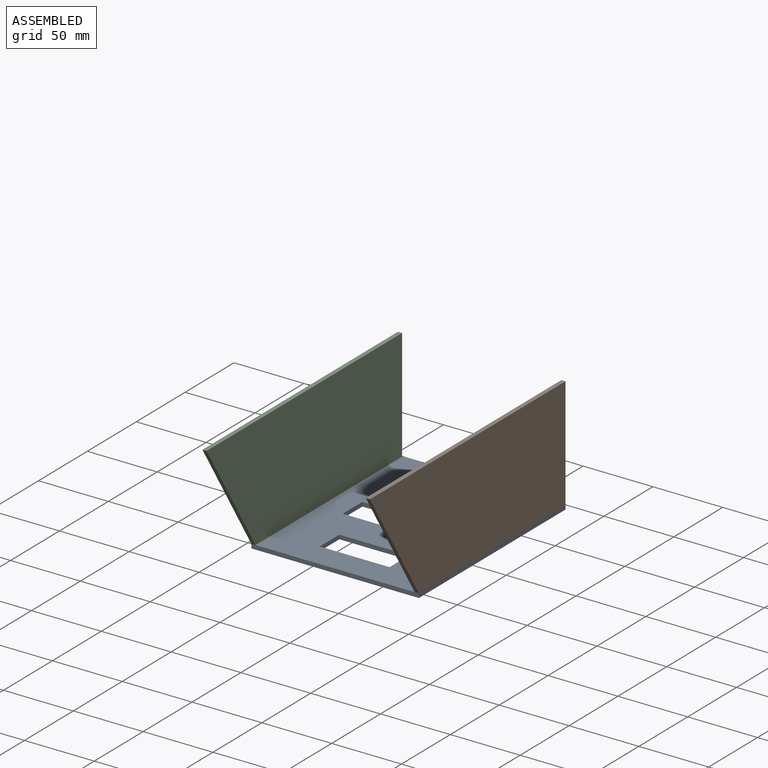
[diagram: assembled view]
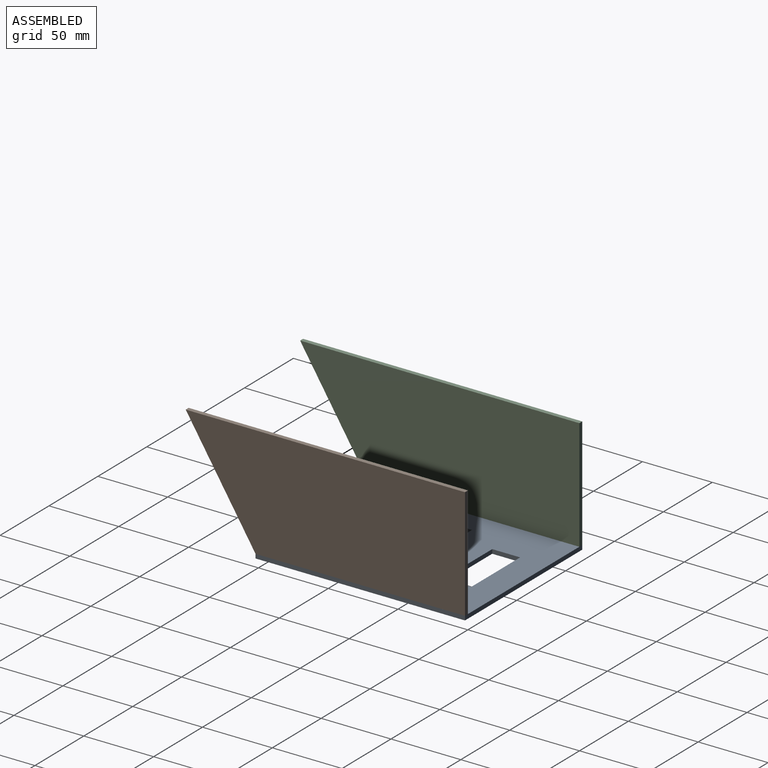
[diagram: assembled view, second angle]
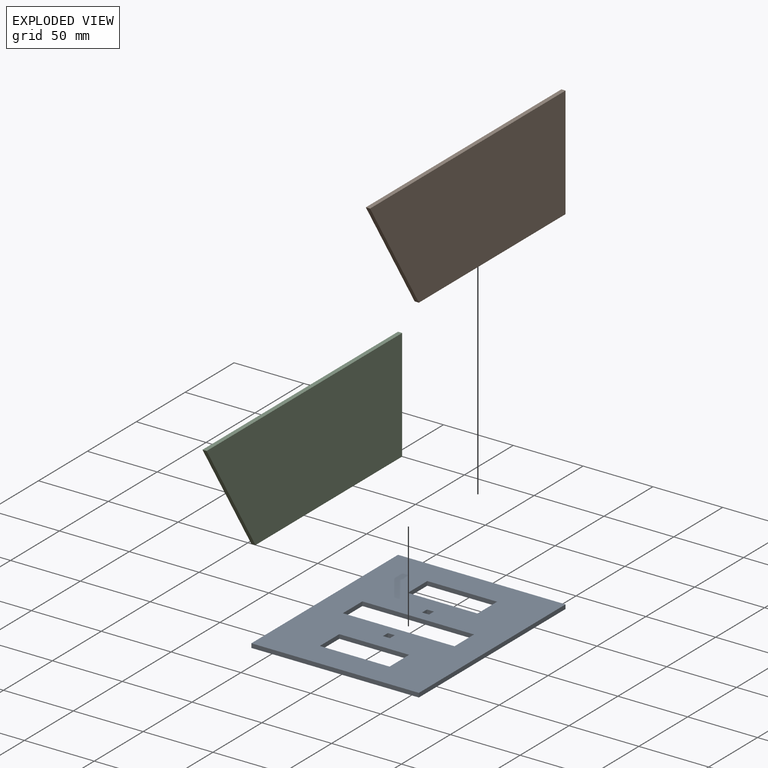
[diagram: exploded view]
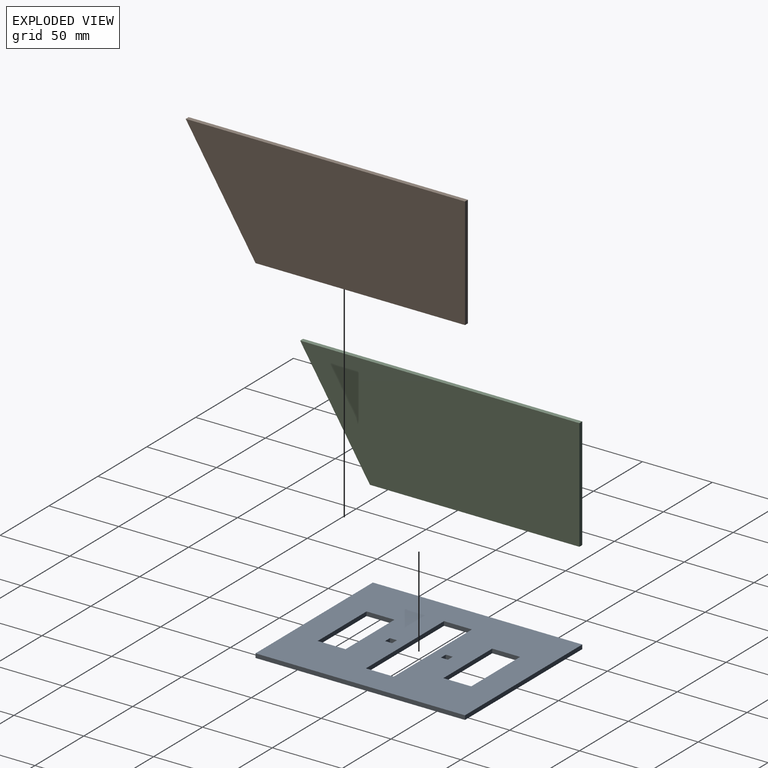
[diagram: exploded view, second angle]
ASSEMBLY  parts=3 mates=2
PART A: 26 faces, bbox 120x150x3 mm
  f0: plane 5x3mm, normal (0,1,0), area 15mm2, adj f1,f23,f24,f25
  f1: plane 5x3mm, normal (1,0,0), area 15mm2, adj f0,f2,f24,f25
  f2: plane 5x3mm, normal (0,-1,0), area 15mm2, adj f1,f23,f24,f25
  f3: plane 5x3mm, normal (1,0,0), area 15mm2, adj f4,f18,f24,f25
  f4: plane 5x3mm, normal (0,-1,0), area 15mm2, adj f3,f5,f24,f25
  f5: plane 5x3mm, normal (-1,0,0), area 15mm2, adj f4,f18,f24,f25
  f6: plane 50x3mm, normal (0,-1,0), area 150mm2, adj f7,f19,f24,f25
  f7: plane 20x3mm, normal (-1,0,0), area 60mm2, adj f6,f8,f24,f25
  f8: plane 50x3mm, normal (0,1,0), area 150mm2, adj f7,f19,f24,f25
  f9: plane 20x3mm, normal (-1,0,0), area 60mm2, adj f10,f20,f24,f25
  f10: plane 50x3mm, normal (0,1,0), area 150mm2, adj f9,f11,f24,f25
  f11: plane 20x3mm, normal (1,0,0), area 60mm2, adj f10,f20,f24,f25
  f12: plane 20x3mm, normal (-1,0,0), area 60mm2, adj f13,f21,f24,f25
  f13: plane 80x3mm, normal (0,1,0), area 240mm2, adj f12,f14,f24,f25
  f14: plane 20x3mm, normal (1,0,0), area 60mm2, adj f13,f21,f24,f25
  f15: plane 150x3mm, normal (-1,0,0), area 450mm2, adj f16,f22,f24,f25
  f16: plane 120x3mm, normal (0,-1,0), area 360mm2, adj f15,f17,f24,f25
  f17: plane 150x3mm, normal (1,0,0), area 450mm2, adj f16,f22,f24,f25
  f18: plane 5x3mm, normal (0,1,0), area 15mm2, adj f3,f5,f24,f25
  f19: plane 20x3mm, normal (1,0,0), area 60mm2, adj f6,f8,f24,f25
  f20: plane 50x3mm, normal (0,-1,0), area 150mm2, adj f9,f11,f24,f25
  f21: plane 80x3mm, normal (0,-1,0), area 240mm2, adj f12,f14,f24,f25
  f22: plane 120x3mm, normal (0,1,0), area 360mm2, adj f15,f17,f24,f25
  f23: plane 5x3mm, normal (-1,0,0), area 15mm2, adj f0,f2,f24,f25
  f24: plane 150x120mm, normal (0,0,1), area 14350mm2, adj f0,f1,f2,f3,f4,f5,f6,f7
  f25: plane 150x120mm, normal (0,0,-1), area 14350mm2, adj f0,f1,f2,f3,f4,f5,f6,f7
PART B: 6 faces, bbox 3x200x80 mm
  f0: plane 80x50mm, normal (0,-0.85,-0.53), area 283mm2, adj f1,f3,f4,f5
  f1: plane 150x3mm, normal (0,0,-1), area 450mm2, adj f0,f2,f4,f5
  f2: plane 80x3mm, normal (0,1,0), area 240mm2, adj f1,f3,f4,f5
  f3: plane 200x3mm, normal (0,0,1), area 600mm2, adj f0,f2,f4,f5
  f4: plane 200x80mm, normal (1,0,0), area 14000mm2, adj f0,f1,f2,f3
  f5: plane 200x80mm, normal (-1,0,0), area 14000mm2, adj f0,f1,f2,f3
PART C: same geometry as B
PLACE A at identity
PLACE B t=(57,0,43)mm
PLACE C t=(-60,0,43)mm
MATE planar C.f1 <-> A.f24  axis (0,0,-1) through (-60,-75,3)mm
MATE planar B.f1 <-> A.f24  axis (0,0,-1) through (60,-75,3)mm
